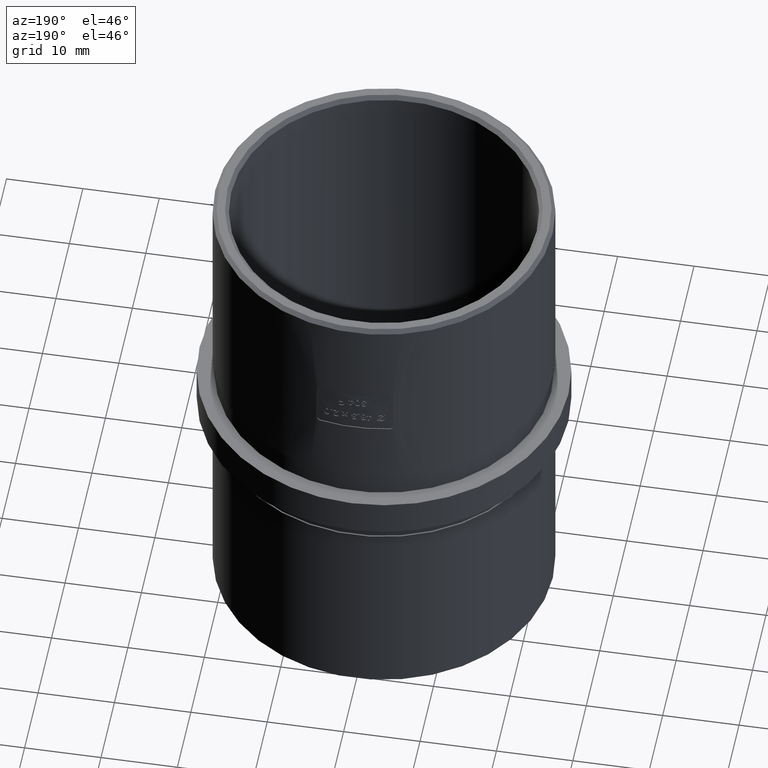
[diagram: clean part render]
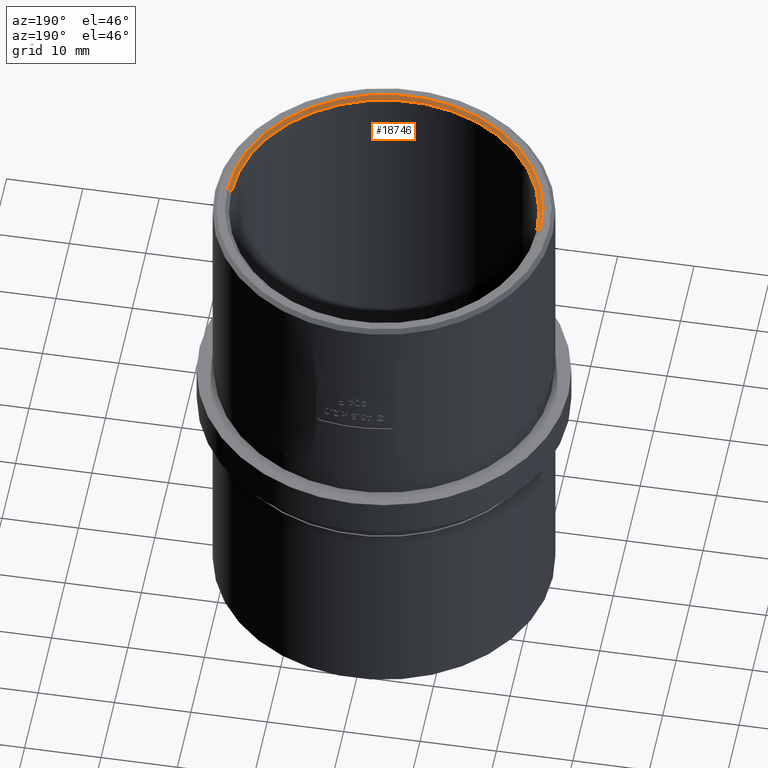
[diagram: same view with one face highlighted and labeled with its STEP entity id]
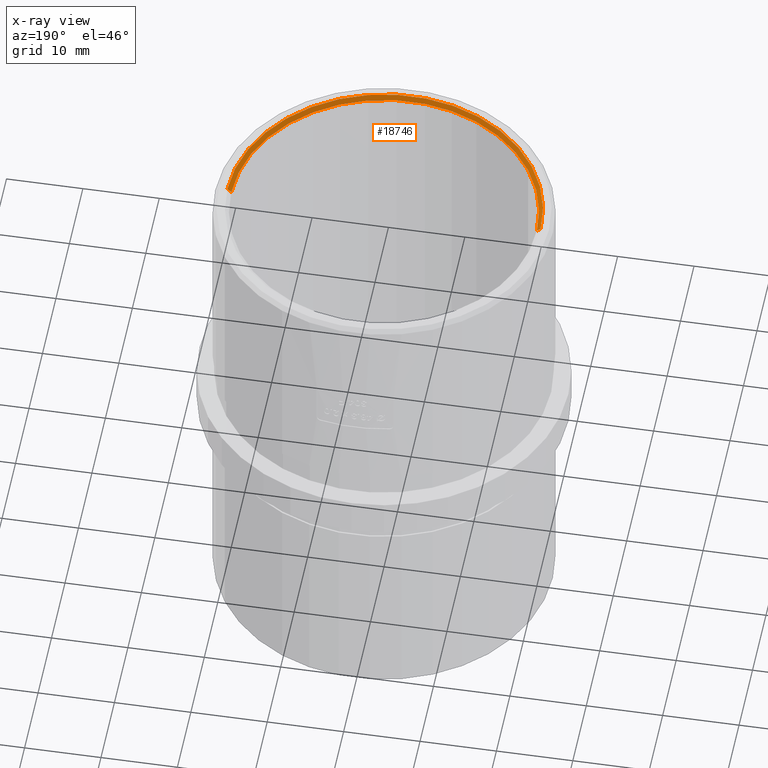
[diagram: x-ray of the same camera — body ghosted, the highlighted face saturated]
A machine part, auxiliary view. The second image highlights one B-rep face of the part: STEP entity #18746.
The next image is the same camera in x-ray: the body ghosted, the highlighted face saturated — about 0% of this face is hidden behind the body in this view.
In plain terms, the highlighted conical surface has half-angle 45 deg.
Its self-contained STEP definition (entity closure, byte-faithful):
#396 = VECTOR ( 'NONE', #8839, 1000.000000000000000 ) ;
#1725 = CARTESIAN_POINT ( 'NONE',  ( 0.0000000000000000000, 0.0000000000000000000, 32.00000000000000000 ) ) ;
#2438 = VERTEX_POINT ( 'NONE', #4271 ) ;
#3291 = ORIENTED_EDGE ( 'NONE', *, *, #20344, .F. ) ;
#3360 = VERTEX_POINT ( 'NONE', #6061 ) ;
#4271 = CARTESIAN_POINT ( 'NONE',  ( 20.49999999999998900, 0.0000000000000000000, 32.50000000000000000 ) ) ;
#4845 = EDGE_CURVE ( 'NONE', #3360, #20336, #20265, .T. ) ;
#5380 = CARTESIAN_POINT ( 'NONE',  ( -20.00000000000000000, 2.449293598294706500E-015, 32.00000000000000000 ) ) ;
#5539 = DIRECTION ( 'NONE',  ( 0.0000000000000000000, 0.0000000000000000000, 1.000000000000000000 ) ) ;
#5842 = AXIS2_PLACEMENT_3D ( 'NONE', #18343, #15180, #15103 ) ;
#6061 = CARTESIAN_POINT ( 'NONE',  ( -20.00000000000000000, 2.449293598294706500E-015, 32.00000000000000000 ) ) ;
#6510 = CIRCLE ( 'NONE', #5842, 20.49999999999998900 ) ;
#6808 = CONICAL_SURFACE ( 'NONE', #15339, 20.00000000000000000, 0.7853981633974378400 ) ;
#6889 = VECTOR ( 'NONE', #12910, 1000.000000000000000 ) ;
#8839 = DIRECTION ( 'NONE',  ( -0.7071067811865401300, 8.659560562354844100E-017, 0.7071067811865549000 ) ) ;
#9650 = EDGE_CURVE ( 'NONE', #3360, #16711, #18061, .T. ) ;
#11114 = CARTESIAN_POINT ( 'NONE',  ( -20.49999999999998900, 2.510525938252072900E-015, 32.50000000000000000 ) ) ;
#12346 = FACE_OUTER_BOUND ( 'NONE', #12956, .T. ) ;
#12910 = DIRECTION ( 'NONE',  ( 0.7071067811865401300, 0.0000000000000000000, 0.7071067811865549000 ) ) ;
#12956 = EDGE_LOOP ( 'NONE', ( #13289, #15970, #20266, #3291 ) ) ;
#13289 = ORIENTED_EDGE ( 'NONE', *, *, #4845, .F. ) ;
#13698 = CARTESIAN_POINT ( 'NONE',  ( 0.0000000000000000000, 0.0000000000000000000, 32.00000000000000000 ) ) ;
#15103 = DIRECTION ( 'NONE',  ( 1.000000000000000000, 0.0000000000000000000, 0.0000000000000000000 ) ) ;
#15180 = DIRECTION ( 'NONE',  ( -0.0000000000000000000, -0.0000000000000000000, -1.000000000000000000 ) ) ;
#15319 = LINE ( 'NONE', #18127, #6889 ) ;
#15339 = AXIS2_PLACEMENT_3D ( 'NONE', #1725, #20148, #21586 ) ;
#15970 = ORIENTED_EDGE ( 'NONE', *, *, #9650, .T. ) ;
#16400 = EDGE_CURVE ( 'NONE', #2438, #16711, #6510, .T. ) ;
#16436 = CARTESIAN_POINT ( 'NONE',  ( 20.00000000000000000, 0.0000000000000000000, 32.00000000000000000 ) ) ;
#16711 = VERTEX_POINT ( 'NONE', #11114 ) ;
#17310 = DIRECTION ( 'NONE',  ( 1.000000000000000000, 0.0000000000000000000, 0.0000000000000000000 ) ) ;
#18061 = LINE ( 'NONE', #5380, #396 ) ;
#18127 = CARTESIAN_POINT ( 'NONE',  ( 20.00000000000000000, 0.0000000000000000000, 32.00000000000000000 ) ) ;
#18343 = CARTESIAN_POINT ( 'NONE',  ( 0.0000000000000000000, 0.0000000000000000000, 32.50000000000000000 ) ) ;
#18746 = ADVANCED_FACE ( 'NONE', ( #12346 ), #6808, .F. ) ;
#19726 = AXIS2_PLACEMENT_3D ( 'NONE', #13698, #5539, #17310 ) ;
#20148 = DIRECTION ( 'NONE',  ( 0.0000000000000000000, 0.0000000000000000000, 1.000000000000000000 ) ) ;
#20265 = CIRCLE ( 'NONE', #19726, 20.00000000000000000 ) ;
#20266 = ORIENTED_EDGE ( 'NONE', *, *, #16400, .F. ) ;
#20336 = VERTEX_POINT ( 'NONE', #16436 ) ;
#20344 = EDGE_CURVE ( 'NONE', #20336, #2438, #15319, .T. ) ;
#21586 = DIRECTION ( 'NONE',  ( 1.000000000000000000, 0.0000000000000000000, 0.0000000000000000000 ) ) ;